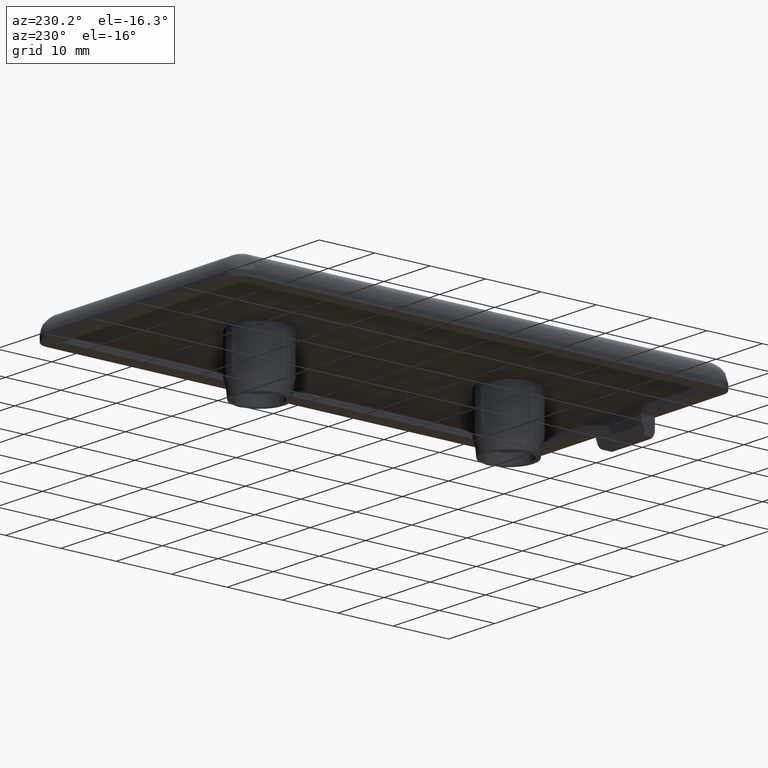
[diagram: clean part render]
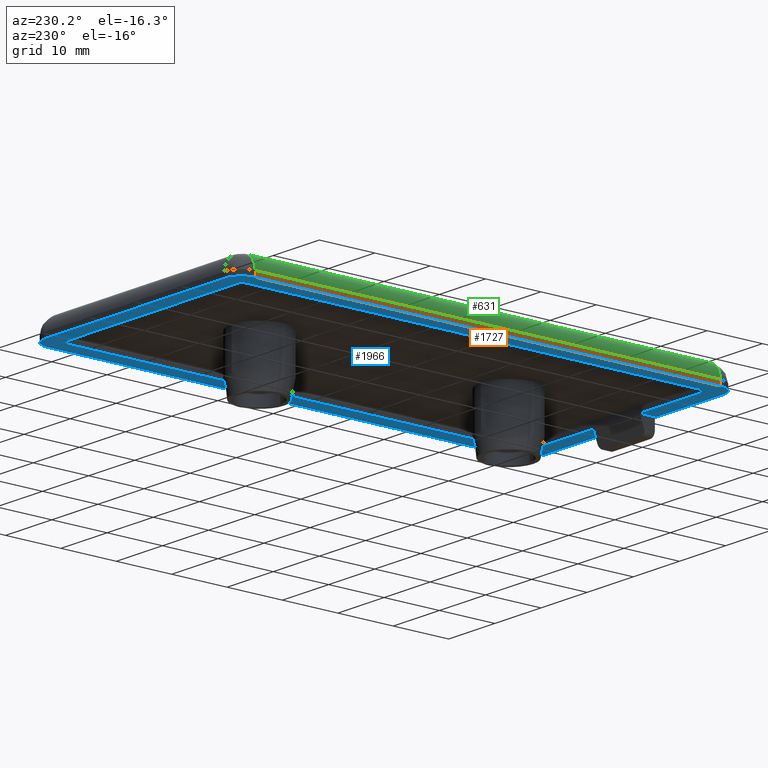
[diagram: same view with three faces highlighted in distinct colors, each labeled with its STEP entity id]
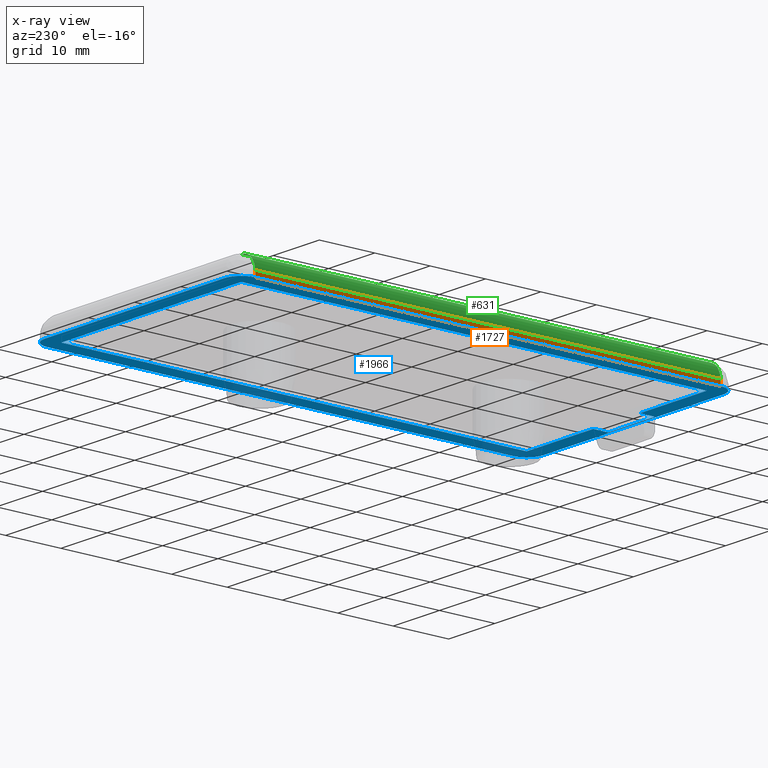
[diagram: x-ray of the same camera — body ghosted, the three highlighted faces saturated]
A machine part, auxiliary view with three faces highlighted in distinct colors.
The next image is the same camera in x-ray (body ghosted, the three faces saturated) — at least one of them is partly hidden behind the body in this view.
Their STEP definitions:

[orange] entity #1727 — the highlighted planar face has unit normal (1, -0, -0).
#98 = DIRECTION ( 'NONE',  ( -2.220446049250310100E-016, -1.000000000000000000, 1.224646799147350000E-016 ) ) ;
#132 = VECTOR ( 'NONE', #98, 1000.000000000000000 ) ;
#159 = DIRECTION ( 'NONE',  ( -1.486057055854348900E-033, 3.299709518632336300E-049, -1.000000000000000000 ) ) ;
#167 = CARTESIAN_POINT ( 'NONE',  ( -22.50000000000000000, -45.00000000000000000, 5.510910596163090300E-015 ) ) ;
#168 = EDGE_CURVE ( 'NONE', #948, #1366, #2098, .T. ) ;
#282 = CARTESIAN_POINT ( 'NONE',  ( -22.50000000000000000, -45.00000000000000000, 1.000000000000006200 ) ) ;
#363 = AXIS2_PLACEMENT_3D ( 'NONE', #167, #1488, #1991 ) ;
#421 = EDGE_CURVE ( 'NONE', #1334, #948, #1117, .T. ) ;
#529 = CARTESIAN_POINT ( 'NONE',  ( -22.50000000000000000, -42.00000000000000000, 5.510910596163090300E-015 ) ) ;
#730 = DIRECTION ( 'NONE',  ( 2.220446049250310100E-016, 1.000000000000000000, 0.0000000000000000000 ) ) ;
#832 = VERTEX_POINT ( 'NONE', #1505 ) ;
#903 = CARTESIAN_POINT ( 'NONE',  ( -22.50000000000000000, -42.00000000000000000, 1.000000000000004400 ) ) ;
#948 = VERTEX_POINT ( 'NONE', #903 ) ;
#1037 = LINE ( 'NONE', #1548, #1848 ) ;
#1116 = ORIENTED_EDGE ( 'NONE', *, *, #2052, .F. ) ;
#1117 = LINE ( 'NONE', #282, #132 ) ;
#1152 = ORIENTED_EDGE ( 'NONE', *, *, #168, .F. ) ;
#1184 = CARTESIAN_POINT ( 'NONE',  ( -22.49999999999997900, 41.99999999999999300, 5.510910596163090300E-015 ) ) ;
#1334 = VERTEX_POINT ( 'NONE', #1849 ) ;
#1354 = CARTESIAN_POINT ( 'NONE',  ( -22.50000000000000000, -42.00000000000000000, 5.143516556418880200E-015 ) ) ;
#1366 = VERTEX_POINT ( 'NONE', #1354 ) ;
#1414 = FACE_OUTER_BOUND ( 'NONE', #1556, .T. ) ;
#1488 = DIRECTION ( 'NONE',  ( 1.000000000000000000, -2.220446049250310100E-016, -1.486057055854348900E-033 ) ) ;
#1505 = CARTESIAN_POINT ( 'NONE',  ( -22.49999999999997900, 41.99999999999999300, -2.696301922142130200E-030 ) ) ;
#1548 = CARTESIAN_POINT ( 'NONE',  ( -22.50000000000000000, -45.00000000000000000, 5.143516556418880200E-015 ) ) ;
#1556 = EDGE_LOOP ( 'NONE', ( #2061, #1597, #1116, #1152 ) ) ;
#1597 = ORIENTED_EDGE ( 'NONE', *, *, #1929, .F. ) ;
#1673 = DIRECTION ( 'NONE',  ( 1.486057055854348900E-033, -3.299709518632336300E-049, 1.000000000000000000 ) ) ;
#1727 = ADVANCED_FACE ( 'NONE', ( #1414 ), #1786, .F. ) ;
#1786 = PLANE ( 'NONE',  #363 ) ;
#1798 = LINE ( 'NONE', #1184, #2076 ) ;
#1848 = VECTOR ( 'NONE', #730, 1000.000000000000000 ) ;
#1849 = CARTESIAN_POINT ( 'NONE',  ( -22.49999999999999300, 41.99999999999999300, 0.9999999999930949700 ) ) ;
#1891 = VECTOR ( 'NONE', #159, 1000.000000000000000 ) ;
#1929 = EDGE_CURVE ( 'NONE', #832, #1334, #1798, .T. ) ;
#1991 = DIRECTION ( 'NONE',  ( 2.220446049250310100E-016, 1.000000000000000000, 0.0000000000000000000 ) ) ;
#2052 = EDGE_CURVE ( 'NONE', #1366, #832, #1037, .T. ) ;
#2061 = ORIENTED_EDGE ( 'NONE', *, *, #421, .F. ) ;
#2076 = VECTOR ( 'NONE', #1673, 1000.000000000000000 ) ;
#2098 = LINE ( 'NONE', #529, #1891 ) ;

[blue] entity #1966 — the highlighted planar face has unit normal (-0, -0, -1).
#30 = CARTESIAN_POINT ( 'NONE',  ( 19.50000000000000000, 42.00000000000000000, -5.143516556418880200E-015 ) ) ;
#38 = CARTESIAN_POINT ( 'NONE',  ( 22.50000000000000000, -41.99999999999999300, 5.143516556418854100E-015 ) ) ;
#39 = EDGE_CURVE ( 'NONE', #913, #1024, #1925, .T. ) ;
#41 = ORIENTED_EDGE ( 'NONE', *, *, #1619, .T. ) ;
#54 = EDGE_CURVE ( 'NONE', #939, #832, #148, .T. ) ;
#68 = ORIENTED_EDGE ( 'NONE', *, *, #1325, .T. ) ;
#75 = CARTESIAN_POINT ( 'NONE',  ( 19.50000000000000000, 45.00000000000000000, -5.510910596163088000E-015 ) ) ;
#113 = ORIENTED_EDGE ( 'NONE', *, *, #39, .T. ) ;
#142 = VERTEX_POINT ( 'NONE', #964 ) ;
#148 = CIRCLE ( 'NONE', #217, 3.000000000000002700 ) ;
#155 = CIRCLE ( 'NONE', #1573, 3.000000000000002700 ) ;
#180 = VECTOR ( 'NONE', #1981, 1000.000000000000000 ) ;
#187 = DIRECTION ( 'NONE',  ( 1.000000000000000000, -3.330135684236018400E-048, -2.719262146893779900E-032 ) ) ;
#217 = AXIS2_PLACEMENT_3D ( 'NONE', #1901, #955, #438 ) ;
#235 = DIRECTION ( 'NONE',  ( 0.0000000000000000000, 1.000000000000000000, -1.224646799147350000E-016 ) ) ;
#245 = EDGE_CURVE ( 'NONE', #1375, #512, #1835, .T. ) ;
#313 = CARTESIAN_POINT ( 'NONE',  ( 5.049999999999991800, 45.00000000000000000, -5.510910596163089600E-015 ) ) ;
#323 = VECTOR ( 'NONE', #393, 1000.000000000000000 ) ;
#358 = CARTESIAN_POINT ( 'NONE',  ( 22.50000000000000000, -44.70000000000000300, 5.474171192188639500E-015 ) ) ;
#390 = AXIS2_PLACEMENT_3D ( 'NONE', #1996, #573, #2034 ) ;
#392 = ORIENTED_EDGE ( 'NONE', *, *, #1022, .T. ) ;
#393 = DIRECTION ( 'NONE',  ( -0.0000000000000000000, -1.000000000000000000, 1.224646799147350000E-016 ) ) ;
#427 = LINE ( 'NONE', #38, #931 ) ;
#438 = DIRECTION ( 'NONE',  ( 0.0000000000000000000, 1.000000000000000000, -1.224646799147349500E-016 ) ) ;
#442 = CARTESIAN_POINT ( 'NONE',  ( 22.50000000000000000, -42.00000000000000000, 2.696301922142130200E-030 ) ) ;
#482 = DIRECTION ( 'NONE',  ( 1.000000000000000000, -2.220446049250310100E-016, 0.0000000000000000000 ) ) ;
#507 = VERTEX_POINT ( 'NONE', #936 ) ;
#512 = VERTEX_POINT ( 'NONE', #2080 ) ;
#537 = ORIENTED_EDGE ( 'NONE', *, *, #1087, .T. ) ;
#551 = VECTOR ( 'NONE', #924, 1000.000000000000000 ) ;
#554 = CARTESIAN_POINT ( 'NONE',  ( -5.050000000000009600, -44.70000000000000300, 5.556011244556631700E-015 ) ) ;
#573 = DIRECTION ( 'NONE',  ( -2.719262146893779900E-032, -1.224646799147350000E-016, -1.000000000000000000 ) ) ;
#585 = DIRECTION ( 'NONE',  ( 1.000000000000000000, -3.330135684236018400E-048, -2.719262146893779900E-032 ) ) ;
#587 = VECTOR ( 'NONE', #482, 1000.000000000000000 ) ;
#670 = VERTEX_POINT ( 'NONE', #1603 ) ;
#694 = DIRECTION ( 'NONE',  ( -0.0000000000000000000, -1.000000000000000000, 1.224646799147350000E-016 ) ) ;
#697 = ORIENTED_EDGE ( 'NONE', *, *, #1298, .T. ) ;
#730 = DIRECTION ( 'NONE',  ( 2.220446049250310100E-016, 1.000000000000000000, 0.0000000000000000000 ) ) ;
#735 = VECTOR ( 'NONE', #1665, 1000.000000000000000 ) ;
#746 = CARTESIAN_POINT ( 'NONE',  ( 5.049999999999991800, -41.99999999999999300, 5.662077528489232300E-015 ) ) ;
#787 = LINE ( 'NONE', #1404, #1440 ) ;
#795 = ORIENTED_EDGE ( 'NONE', *, *, #245, .T. ) ;
#816 = EDGE_CURVE ( 'NONE', #1340, #913, #1160, .T. ) ;
#832 = VERTEX_POINT ( 'NONE', #1505 ) ;
#878 = EDGE_CURVE ( 'NONE', #142, #2084, #1031, .T. ) ;
#913 = VERTEX_POINT ( 'NONE', #2015 ) ;
#924 = DIRECTION ( 'NONE',  ( -1.000000000000000000, 3.330135684236018400E-048, 2.719262146893779900E-032 ) ) ;
#931 = VECTOR ( 'NONE', #187, 1000.000000000000000 ) ;
#936 = CARTESIAN_POINT ( 'NONE',  ( 19.50000000000000000, -45.00000000000000000, 5.510910596163091100E-015 ) ) ;
#939 = VERTEX_POINT ( 'NONE', #1364 ) ;
#953 = DIRECTION ( 'NONE',  ( -2.719262146893779900E-032, -1.224646799147350000E-016, -1.000000000000000000 ) ) ;
#955 = DIRECTION ( 'NONE',  ( 2.719262146893779900E-032, 1.224646799147350000E-016, 1.000000000000000000 ) ) ;
#959 = CARTESIAN_POINT ( 'NONE',  ( 19.50000000000000000, -42.00000000000000000, 5.143516556418885700E-015 ) ) ;
#964 = CARTESIAN_POINT ( 'NONE',  ( 22.50000000000002100, 41.99999999999999300, -5.143516556418880200E-015 ) ) ;
#983 = DIRECTION ( 'NONE',  ( -2.719262146893779900E-032, -1.224646799147350000E-016, -1.000000000000000000 ) ) ;
#998 = VERTEX_POINT ( 'NONE', #1883 ) ;
#1009 = CIRCLE ( 'NONE', #1685, 3.000000000000002700 ) ;
#1022 = EDGE_CURVE ( 'NONE', #1137, #1375, #1740, .T. ) ;
#1024 = VERTEX_POINT ( 'NONE', #746 ) ;
#1031 = LINE ( 'NONE', #1698, #1111 ) ;
#1037 = LINE ( 'NONE', #1548, #1848 ) ;
#1087 = EDGE_CURVE ( 'NONE', #998, #1366, #1009, .T. ) ;
#1111 = VECTOR ( 'NONE', #1350, 1000.000000000000000 ) ;
#1133 = CARTESIAN_POINT ( 'NONE',  ( 22.50000000000000000, 45.00000000000000000, -5.510910596163091100E-015 ) ) ;
#1137 = VERTEX_POINT ( 'NONE', #1750 ) ;
#1139 = CIRCLE ( 'NONE', #1150, 3.000000000000002700 ) ;
#1150 = AXIS2_PLACEMENT_3D ( 'NONE', #30, #983, #1821 ) ;
#1160 = LINE ( 'NONE', #358, #735 ) ;
#1167 = PLANE ( 'NONE',  #390 ) ;
#1188 = ORIENTED_EDGE ( 'NONE', *, *, #878, .T. ) ;
#1198 = CARTESIAN_POINT ( 'NONE',  ( -19.49999999999999600, 45.00000000000000000, -5.510910596163089600E-015 ) ) ;
#1199 = EDGE_CURVE ( 'NONE', #2084, #507, #155, .T. ) ;
#1210 = FACE_BOUND ( 'NONE', #1669, .T. ) ;
#1233 = ORIENTED_EDGE ( 'NONE', *, *, #1199, .T. ) ;
#1239 = EDGE_LOOP ( 'NONE', ( #41, #697, #1188, #1233, #2001, #537, #1504, #2043 ) ) ;
#1258 = DIRECTION ( 'NONE',  ( -2.719262146893779900E-032, -1.224646799147350000E-016, -1.000000000000000000 ) ) ;
#1261 = EDGE_CURVE ( 'NONE', #507, #998, #2008, .T. ) ;
#1288 = ORIENTED_EDGE ( 'NONE', *, *, #1915, .T. ) ;
#1297 = EDGE_CURVE ( 'NONE', #1948, #1340, #1459, .T. ) ;
#1298 = EDGE_CURVE ( 'NONE', #1874, #142, #1139, .T. ) ;
#1325 = EDGE_CURVE ( 'NONE', #512, #1948, #427, .T. ) ;
#1340 = VERTEX_POINT ( 'NONE', #554 ) ;
#1349 = ORIENTED_EDGE ( 'NONE', *, *, #1513, .T. ) ;
#1350 = DIRECTION ( 'NONE',  ( -2.220446049250310100E-016, -1.000000000000000000, 0.0000000000000000000 ) ) ;
#1351 = CARTESIAN_POINT ( 'NONE',  ( -5.050000000000009600, -42.00000000000000000, 5.039392181095164200E-015 ) ) ;
#1354 = CARTESIAN_POINT ( 'NONE',  ( -22.50000000000000000, -42.00000000000000000, 5.143516556418880200E-015 ) ) ;
#1364 = CARTESIAN_POINT ( 'NONE',  ( -19.49999999999999600, 45.00000000000000700, -5.510910596163091100E-015 ) ) ;
#1366 = VERTEX_POINT ( 'NONE', #1354 ) ;
#1375 = VERTEX_POINT ( 'NONE', #2013 ) ;
#1404 = CARTESIAN_POINT ( 'NONE',  ( 22.50000000000000000, -41.99999999999999300, 5.143516556418854100E-015 ) ) ;
#1422 = ORIENTED_EDGE ( 'NONE', *, *, #1297, .T. ) ;
#1440 = VECTOR ( 'NONE', #585, 1000.000000000000000 ) ;
#1446 = ORIENTED_EDGE ( 'NONE', *, *, #816, .T. ) ;
#1459 = LINE ( 'NONE', #1968, #2055 ) ;
#1478 = VECTOR ( 'NONE', #1765, 1000.000000000000000 ) ;
#1490 = CARTESIAN_POINT ( 'NONE',  ( 22.50000000000000000, -45.00000000000000000, 5.510910596163090300E-015 ) ) ;
#1504 = ORIENTED_EDGE ( 'NONE', *, *, #2052, .T. ) ;
#1505 = CARTESIAN_POINT ( 'NONE',  ( -22.49999999999997900, 41.99999999999999300, -2.696301922142130200E-030 ) ) ;
#1513 = EDGE_CURVE ( 'NONE', #1024, #670, #787, .T. ) ;
#1515 = CARTESIAN_POINT ( 'NONE',  ( 19.50000000000000000, 45.00000000000000000, -5.510910596163090300E-015 ) ) ;
#1548 = CARTESIAN_POINT ( 'NONE',  ( -22.50000000000000000, -45.00000000000000000, 5.143516556418880200E-015 ) ) ;
#1573 = AXIS2_PLACEMENT_3D ( 'NONE', #959, #953, #1770 ) ;
#1575 = CARTESIAN_POINT ( 'NONE',  ( -19.50000000000000000, -42.00000000000000000, 5.143516556418880200E-015 ) ) ;
#1583 = FACE_OUTER_BOUND ( 'NONE', #1239, .T. ) ;
#1584 = DIRECTION ( 'NONE',  ( 0.0000000000000000000, 1.000000000000000000, -1.224646799147349500E-016 ) ) ;
#1603 = CARTESIAN_POINT ( 'NONE',  ( 19.50000000000000000, -41.99999999999999300, 5.189006960052529500E-015 ) ) ;
#1619 = EDGE_CURVE ( 'NONE', #939, #1874, #1937, .T. ) ;
#1665 = DIRECTION ( 'NONE',  ( 1.000000000000000000, -3.330135684236018400E-048, -2.719262146893779900E-032 ) ) ;
#1669 = EDGE_LOOP ( 'NONE', ( #392, #795, #68, #1422, #1446, #113, #1349, #1288 ) ) ;
#1685 = AXIS2_PLACEMENT_3D ( 'NONE', #1575, #1258, #1584 ) ;
#1698 = CARTESIAN_POINT ( 'NONE',  ( 22.50000000000000000, -45.00000000000000000, -5.143516556418880200E-015 ) ) ;
#1740 = LINE ( 'NONE', #2060, #551 ) ;
#1750 = CARTESIAN_POINT ( 'NONE',  ( 19.50000000000001100, 42.00000000000000000, 1.516346787788383400E-017 ) ) ;
#1765 = DIRECTION ( 'NONE',  ( 0.0000000000000000000, 1.000000000000000000, -1.224646799147350000E-016 ) ) ;
#1770 = DIRECTION ( 'NONE',  ( 0.0000000000000000000, 1.000000000000000000, -1.224646799147349500E-016 ) ) ;
#1821 = DIRECTION ( 'NONE',  ( 0.0000000000000000000, 1.000000000000000000, -1.224646799147349500E-016 ) ) ;
#1835 = LINE ( 'NONE', #1198, #323 ) ;
#1848 = VECTOR ( 'NONE', #730, 1000.000000000000000 ) ;
#1874 = VERTEX_POINT ( 'NONE', #75 ) ;
#1883 = CARTESIAN_POINT ( 'NONE',  ( -19.49999999999999600, -44.99999999999999300, 5.510910596163084000E-015 ) ) ;
#1901 = CARTESIAN_POINT ( 'NONE',  ( -19.50000000000000000, 42.00000000000000000, -5.143516556418885700E-015 ) ) ;
#1906 = LINE ( 'NONE', #1515, #1983 ) ;
#1915 = EDGE_CURVE ( 'NONE', #670, #1137, #1906, .T. ) ;
#1925 = LINE ( 'NONE', #313, #1478 ) ;
#1937 = LINE ( 'NONE', #1133, #587 ) ;
#1948 = VERTEX_POINT ( 'NONE', #1351 ) ;
#1966 = ADVANCED_FACE ( 'NONE', ( #1210, #1583 ), #1167, .T. ) ;
#1968 = CARTESIAN_POINT ( 'NONE',  ( -5.050000000000009600, 45.00000000000000000, -5.510910596163089600E-015 ) ) ;
#1981 = DIRECTION ( 'NONE',  ( -1.000000000000000000, 2.220446049250309900E-016, 0.0000000000000000000 ) ) ;
#1983 = VECTOR ( 'NONE', #235, 1000.000000000000000 ) ;
#1996 = CARTESIAN_POINT ( 'NONE',  ( 22.50000000000000000, 45.00000000000000000, -5.510910596163090300E-015 ) ) ;
#2001 = ORIENTED_EDGE ( 'NONE', *, *, #1261, .T. ) ;
#2008 = LINE ( 'NONE', #1490, #180 ) ;
#2013 = CARTESIAN_POINT ( 'NONE',  ( -19.49999999999999600, 42.00000000000000700, -5.189006960052537400E-015 ) ) ;
#2015 = CARTESIAN_POINT ( 'NONE',  ( 5.049999999999990100, -44.70000000000000300, 5.637851296924623100E-015 ) ) ;
#2034 = DIRECTION ( 'NONE',  ( 0.0000000000000000000, 1.000000000000000000, -1.224646799147350000E-016 ) ) ;
#2043 = ORIENTED_EDGE ( 'NONE', *, *, #54, .F. ) ;
#2052 = EDGE_CURVE ( 'NONE', #1366, #832, #1037, .T. ) ;
#2055 = VECTOR ( 'NONE', #694, 1000.000000000000000 ) ;
#2060 = CARTESIAN_POINT ( 'NONE',  ( 22.50000000000000000, 42.00000000000000000, -5.143516556418885700E-015 ) ) ;
#2080 = CARTESIAN_POINT ( 'NONE',  ( -19.49999999999999600, -41.99999999999999300, 2.586921746087319200E-015 ) ) ;
#2084 = VERTEX_POINT ( 'NONE', #442 ) ;

[green] entity #631 — the highlighted cylindrical surface (edge-blend (fillet) strip) has radius 3 mm, axis along (-0, -1, 0).
#98 = DIRECTION ( 'NONE',  ( -2.220446049250310100E-016, -1.000000000000000000, 1.224646799147350000E-016 ) ) ;
#125 = AXIS2_PLACEMENT_3D ( 'NONE', #1442, #1969, #479 ) ;
#132 = VECTOR ( 'NONE', #98, 1000.000000000000000 ) ;
#162 = CARTESIAN_POINT ( 'NONE',  ( -19.49999999999999600, 45.00000000000000000, 3.999999999999989800 ) ) ;
#282 = CARTESIAN_POINT ( 'NONE',  ( -22.50000000000000000, -45.00000000000000000, 1.000000000000006200 ) ) ;
#326 = CARTESIAN_POINT ( 'NONE',  ( -19.49999999999999600, -41.99999999999999300, 4.000000000000001800 ) ) ;
#421 = EDGE_CURVE ( 'NONE', #1334, #948, #1117, .T. ) ;
#479 = DIRECTION ( 'NONE',  ( 1.000000000000000000, 0.0000000000000000000, 0.0000000000000000000 ) ) ;
#499 = LINE ( 'NONE', #162, #1282 ) ;
#563 = ORIENTED_EDGE ( 'NONE', *, *, #1158, .T. ) ;
#631 = ADVANCED_FACE ( 'NONE', ( #2049 ), #1819, .T. ) ;
#645 = EDGE_LOOP ( 'NONE', ( #893, #563, #1640, #1591 ) ) ;
#682 = DIRECTION ( 'NONE',  ( -2.220446049250310100E-016, -1.000000000000000000, 1.224646799147350000E-016 ) ) ;
#777 = EDGE_CURVE ( 'NONE', #1006, #1334, #1630, .T. ) ;
#893 = ORIENTED_EDGE ( 'NONE', *, *, #1498, .T. ) ;
#903 = CARTESIAN_POINT ( 'NONE',  ( -22.50000000000000000, -42.00000000000000000, 1.000000000000004400 ) ) ;
#948 = VERTEX_POINT ( 'NONE', #903 ) ;
#1006 = VERTEX_POINT ( 'NONE', #2050 ) ;
#1035 = AXIS2_PLACEMENT_3D ( 'NONE', #1060, #1718, #2048 ) ;
#1060 = CARTESIAN_POINT ( 'NONE',  ( -19.50000000000000000, -42.00000000000000000, 1.000000000000009500 ) ) ;
#1088 = CIRCLE ( 'NONE', #1035, 2.999999999999999100 ) ;
#1106 = AXIS2_PLACEMENT_3D ( 'NONE', #1642, #682, #1319 ) ;
#1117 = LINE ( 'NONE', #282, #132 ) ;
#1158 = EDGE_CURVE ( 'NONE', #1676, #1006, #499, .T. ) ;
#1282 = VECTOR ( 'NONE', #1595, 1000.000000000000000 ) ;
#1319 = DIRECTION ( 'NONE',  ( 1.000000000000000000, 0.0000000000000000000, 0.0000000000000000000 ) ) ;
#1334 = VERTEX_POINT ( 'NONE', #1849 ) ;
#1442 = CARTESIAN_POINT ( 'NONE',  ( -19.50000000000000000, -45.00000000000000000, 1.000000000000010000 ) ) ;
#1498 = EDGE_CURVE ( 'NONE', #948, #1676, #1088, .T. ) ;
#1591 = ORIENTED_EDGE ( 'NONE', *, *, #421, .T. ) ;
#1595 = DIRECTION ( 'NONE',  ( 0.0000000000000000000, 1.000000000000000000, -1.224646799147350000E-016 ) ) ;
#1630 = CIRCLE ( 'NONE', #1106, 2.999999999999999100 ) ;
#1640 = ORIENTED_EDGE ( 'NONE', *, *, #777, .T. ) ;
#1642 = CARTESIAN_POINT ( 'NONE',  ( -19.49999999999997900, 41.99999999999999300, 0.9999999999999993300 ) ) ;
#1676 = VERTEX_POINT ( 'NONE', #326 ) ;
#1718 = DIRECTION ( 'NONE',  ( 2.220446049250310100E-016, 1.000000000000000000, -1.224646799147350000E-016 ) ) ;
#1819 = CYLINDRICAL_SURFACE ( 'NONE', #125, 2.999999999999999100 ) ;
#1849 = CARTESIAN_POINT ( 'NONE',  ( -22.49999999999999300, 41.99999999999999300, 0.9999999999930949700 ) ) ;
#1969 = DIRECTION ( 'NONE',  ( -2.220446049250310100E-016, -1.000000000000000000, 1.224646799147350000E-016 ) ) ;
#2048 = DIRECTION ( 'NONE',  ( 1.000000000000000000, 0.0000000000000000000, 1.807003620809174600E-015 ) ) ;
#2049 = FACE_OUTER_BOUND ( 'NONE', #645, .T. ) ;
#2050 = CARTESIAN_POINT ( 'NONE',  ( -19.49999999999999600, 41.99999999999999300, 3.999999999999995600 ) ) ;